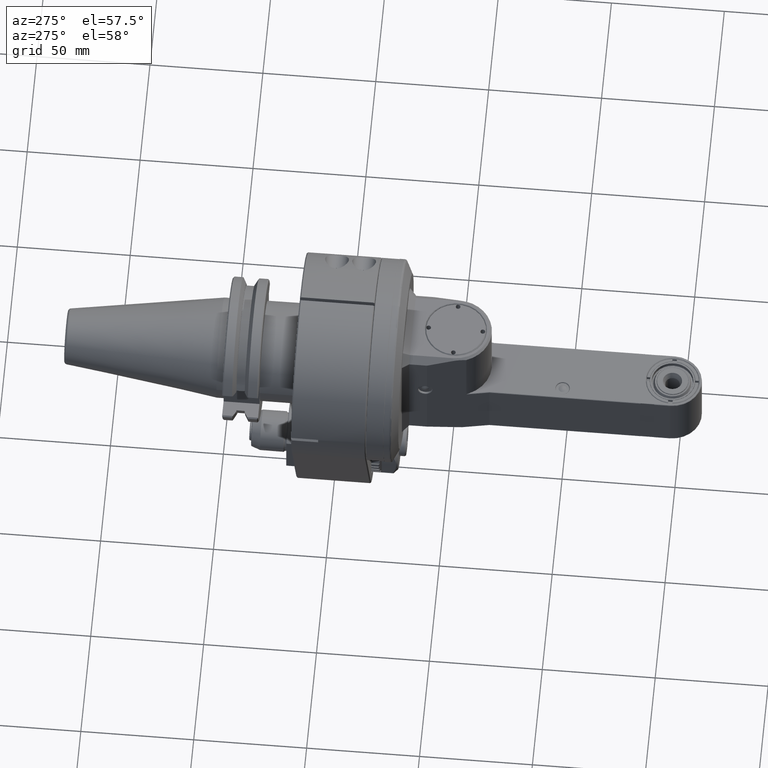
[diagram: clean part render]
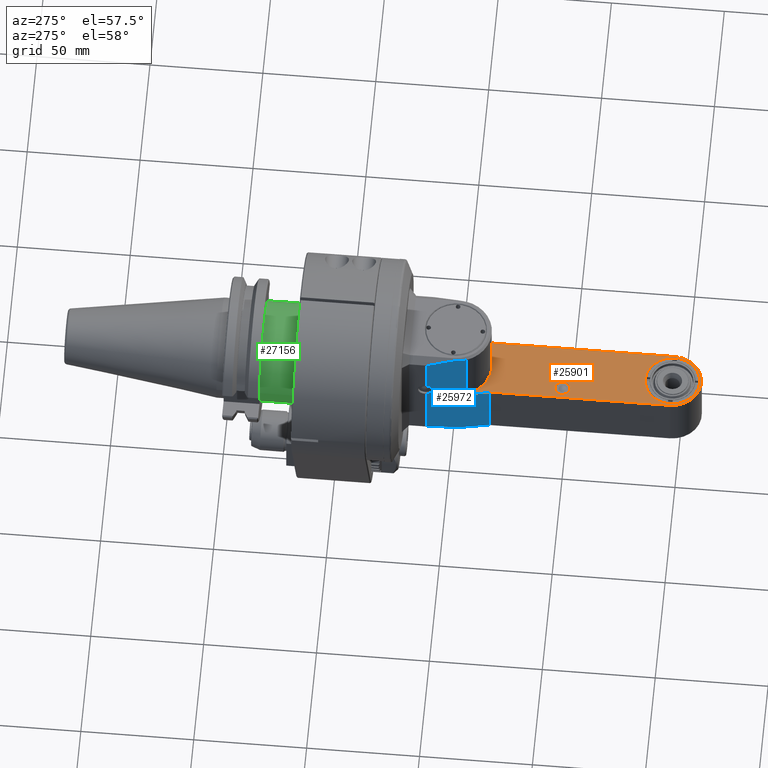
[diagram: same view with three faces highlighted in distinct colors, each labeled with its STEP entity id]
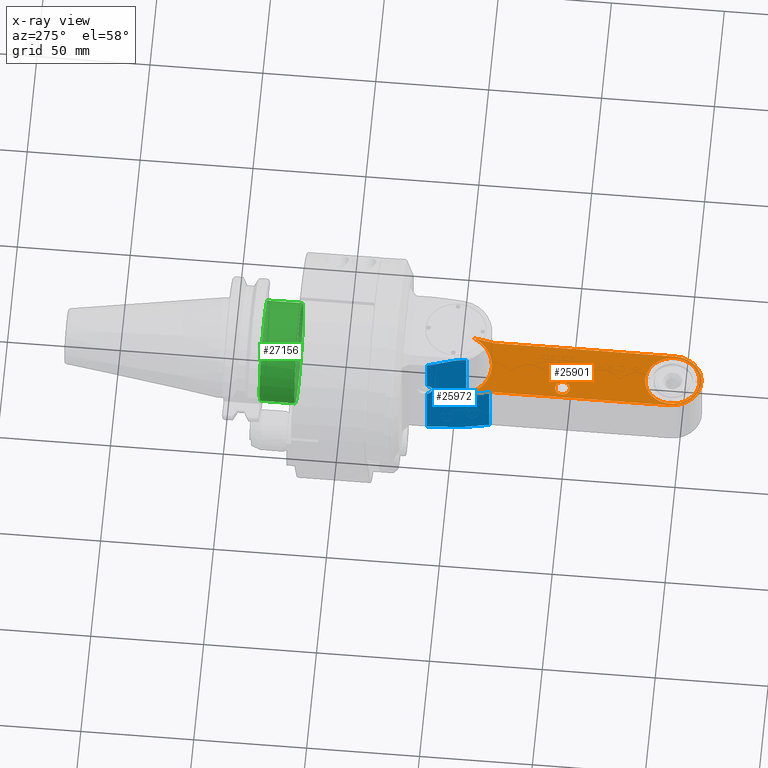
[diagram: x-ray of the same camera — body ghosted, the three highlighted faces saturated]
A machine part, auxiliary view with three faces highlighted in distinct colors.
The next image is the same camera in x-ray (body ghosted, the three faces saturated) — at least one of them is partly hidden behind the body in this view.
Their STEP definitions:

[orange] entity #25901 — the highlighted planar face has unit normal (0, -0, 1).
#596=FACE_BOUND('',#9300,.T.);
#597=FACE_BOUND('',#9301,.T.);
#815=PLANE('',#27831);
#1838=LINE('',#39497,#4217);
#1839=LINE('',#39501,#4218);
#1840=LINE('',#39503,#4219);
#1841=LINE('',#39506,#4220);
#4217=VECTOR('',#31312,0.36873418861607);
#4218=VECTOR('',#31315,0.36873418861607);
#4219=VECTOR('',#31316,3.15032548092756);
#4220=VECTOR('',#31319,3.15032548167756);
#6716=CIRCLE('',#27809,0.47244094488189);
#6727=CIRCLE('',#27832,0.62992125984252);
#6728=CIRCLE('',#27833,0.503937007874016);
#6729=CIRCLE('',#27834,0.127952755905512);
#7734=FACE_OUTER_BOUND('',#9299,.T.);
#9299=EDGE_LOOP('',(#18647,#18648,#18649,#18650,#18651,#18652));
#9300=EDGE_LOOP('',(#18653));
#9301=EDGE_LOOP('',(#18654));
#11393=VERTEX_POINT('',#39461);
#11397=VERTEX_POINT('',#39495);
#11398=VERTEX_POINT('',#39496);
#11399=VERTEX_POINT('',#39498);
#11400=VERTEX_POINT('',#39500);
#11401=VERTEX_POINT('',#39502);
#11402=VERTEX_POINT('',#39504);
#11403=VERTEX_POINT('',#39507);
#14150=EDGE_CURVE('',#11393,#11393,#6716,.T.);
#14165=EDGE_CURVE('',#11397,#11398,#1838,.T.);
#14166=EDGE_CURVE('',#11399,#11397,#6727,.T.);
#14167=EDGE_CURVE('',#11400,#11399,#1839,.T.);
#14168=EDGE_CURVE('',#11400,#11401,#1840,.T.);
#14169=EDGE_CURVE('',#11401,#11402,#6728,.T.);
#14170=EDGE_CURVE('',#11402,#11398,#1841,.T.);
#14171=EDGE_CURVE('',#11403,#11403,#6729,.T.);
#18647=ORIENTED_EDGE('',*,*,#14165,.F.);
#18648=ORIENTED_EDGE('',*,*,#14166,.F.);
#18649=ORIENTED_EDGE('',*,*,#14167,.F.);
#18650=ORIENTED_EDGE('',*,*,#14168,.T.);
#18651=ORIENTED_EDGE('',*,*,#14169,.T.);
#18652=ORIENTED_EDGE('',*,*,#14170,.T.);
#18653=ORIENTED_EDGE('',*,*,#14150,.T.);
#18654=ORIENTED_EDGE('',*,*,#14171,.T.);
#25901=ADVANCED_FACE('',(#7734,#596,#597),#815,.T.);
#27809=AXIS2_PLACEMENT_3D('',#39463,#31263,#31264);
#27831=AXIS2_PLACEMENT_3D('',#39494,#31310,#31311);
#27832=AXIS2_PLACEMENT_3D('',#39499,#31313,#31314);
#27833=AXIS2_PLACEMENT_3D('',#39505,#31317,#31318);
#27834=AXIS2_PLACEMENT_3D('',#39508,#31320,#31321);
#31263=DIRECTION('center_axis',(0.,0.,-1.));
#31264=DIRECTION('ref_axis',(-1.010526389656E-14,1.,0.));
#31310=DIRECTION('center_axis',(0.,0.,1.));
#31311=DIRECTION('ref_axis',(0.,1.,0.));
#31312=DIRECTION('',(0.181162429476896,0.98345318858908,0.));
#31313=DIRECTION('center_axis',(0.,0.,1.));
#31314=DIRECTION('ref_axis',(0.906046240537429,0.423178697488414,0.));
#31315=DIRECTION('',(0.181162429476896,-0.98345318858908,0.));
#31316=DIRECTION('',(-3.568083773111E-11,1.,3.568078263731E-11));
#31317=DIRECTION('center_axis',(0.,0.,1.));
#31318=DIRECTION('ref_axis',(1.,0.,0.));
#31319=DIRECTION('',(-5.597572120253E-11,-1.,-5.597566882584E-11));
#31320=DIRECTION('center_axis',(0.,0.,-1.));
#31321=DIRECTION('ref_axis',(1.,0.,0.));
#39461=CARTESIAN_POINT('',(-4.79696448494094E-15,6.65354330708661,0.));
#39463=CARTESIAN_POINT('Origin',(0.,6.18110236220472,4.19611851826772E-16));
#39494=CARTESIAN_POINT('Origin',(0.,6.18110236220472,0.));
#39495=CARTESIAN_POINT('',(-0.570737789314961,2.66814406141024,0.));
#39496=CARTESIAN_POINT('',(-0.503937007874016,3.03077687494646,0.));
#39497=CARTESIAN_POINT('',(-0.570737789314961,2.66814406141024,0.));
#39498=CARTESIAN_POINT('',(0.570737789314961,2.66814406140984,0.));
#39499=CARTESIAN_POINT('Origin',(0.,2.40157480314961,0.));
#39500=CARTESIAN_POINT('',(0.503937007874016,3.03077687494646,0.));
#39501=CARTESIAN_POINT('',(0.503937007874016,3.03077687494646,0.));
#39502=CARTESIAN_POINT('',(0.503937007805259,6.18110235587402,6.86927670643323E-11));
#39503=CARTESIAN_POINT('',(0.503937007874016,3.03077687494646,0.));
#39504=CARTESIAN_POINT('',(-0.503937007781469,6.18110235662205,9.25226341348549E-11));
#39505=CARTESIAN_POINT('Origin',(0.,6.18110236220472,4.89547160464567E-16));
#39506=CARTESIAN_POINT('',(-0.503937007697638,6.18110235662205,1.76341530689449E-10));
#39507=CARTESIAN_POINT('',(0.31496062992126,4.41929133858268,-3.92293371890188E-15));
#39508=CARTESIAN_POINT('Origin',(0.31496062992126,4.29133858267716,0.));

[blue] entity #25972 — the highlighted planar face has unit normal (0.9835, 0.1812, 0).
#142=(
BOUNDED_CURVE()
B_SPLINE_CURVE(2,(#40506,#40507,#40508),.UNSPECIFIED.,.F.,.F.)
B_SPLINE_CURVE_WITH_KNOTS((3,3),(7.85662819534098,10.0204386234075),
 .UNSPECIFIED.)
CURVE()
GEOMETRIC_REPRESENTATION_ITEM()
RATIONAL_B_SPLINE_CURVE((2.76121976732161,2.8150378216017,2.76490843392963))
REPRESENTATION_ITEM('')
);
#842=PLANE('',#27958);
#1850=LINE('',#39565,#4229);
#1851=LINE('',#39569,#4230);
#2129=LINE('',#40520,#4508);
#2130=LINE('',#40524,#4509);
#2131=LINE('',#40526,#4510);
#2132=LINE('',#40527,#4511);
#2133=LINE('',#40528,#4512);
#2134=LINE('',#40530,#4513);
#4229=VECTOR('',#31338,0.393700787401575);
#4230=VECTOR('',#31343,0.402103029607095);
#4508=VECTOR('',#31855,0.45106329957441);
#4509=VECTOR('',#31858,0.393700787401575);
#4510=VECTOR('',#31859,0.618398548537796);
#4511=VECTOR('',#31860,0.478102294600797);
#4512=VECTOR('',#31861,1.04724409448819);
#4513=VECTOR('',#31862,0.393700787401575);
#7805=FACE_OUTER_BOUND('',#9394,.T.);
#9394=EDGE_LOOP('',(#19153,#19154,#19155,#19156,#19157,#19158,#19159,#19160,
#19161,#19162,#19163));
#10782=B_SPLINE_CURVE_WITH_KNOTS('',3,(#40532,#40533,#40534,#40535,#40536,
#40537,#40538,#40539,#40540),.UNSPECIFIED.,.F.,.F.,(4,1,1,1,1,1,4),(4.55570582722062E-5,
0.1288830013355,0.3451262458863,0.5613694904371,0.7776127349879,0.9938559795386,
1.),.UNSPECIFIED.);
#10783=B_SPLINE_CURVE_WITH_KNOTS('',3,(#40541,#40542,#40543,#40544,#40545,
#40546,#40547,#40548,#40549),.UNSPECIFIED.,.F.,.F.,(4,1,1,1,1,1,4),(0.,
0.006398089645854,0.2226451895674,0.4388922894889,0.6551393894104,0.8713864893319,
0.999952717598519),.UNSPECIFIED.);
#11412=VERTEX_POINT('',#39532);
#11413=VERTEX_POINT('',#39564);
#11414=VERTEX_POINT('',#39568);
#11423=VERTEX_POINT('',#39594);
#11694=VERTEX_POINT('',#40496);
#11698=VERTEX_POINT('',#40518);
#11699=VERTEX_POINT('',#40522);
#11700=VERTEX_POINT('',#40523);
#11701=VERTEX_POINT('',#40525);
#11702=VERTEX_POINT('',#40529);
#11703=VERTEX_POINT('',#40531);
#14183=EDGE_CURVE('',#11413,#11412,#1850,.T.);
#14185=EDGE_CURVE('',#11414,#11413,#1851,.T.);
#14518=EDGE_CURVE('',#11412,#11694,#142,.T.);
#14524=EDGE_CURVE('',#11694,#11698,#2129,.T.);
#14525=EDGE_CURVE('',#11699,#11700,#2130,.T.);
#14526=EDGE_CURVE('',#11699,#11701,#2131,.T.);
#14527=EDGE_CURVE('',#11423,#11701,#2132,.T.);
#14528=EDGE_CURVE('',#11414,#11423,#2133,.T.);
#14529=EDGE_CURVE('',#11702,#11698,#2134,.T.);
#14530=EDGE_CURVE('',#11702,#11703,#10782,.T.);
#14531=EDGE_CURVE('',#11703,#11700,#10783,.T.);
#19153=ORIENTED_EDGE('',*,*,#14525,.F.);
#19154=ORIENTED_EDGE('',*,*,#14526,.T.);
#19155=ORIENTED_EDGE('',*,*,#14527,.F.);
#19156=ORIENTED_EDGE('',*,*,#14528,.F.);
#19157=ORIENTED_EDGE('',*,*,#14185,.T.);
#19158=ORIENTED_EDGE('',*,*,#14183,.T.);
#19159=ORIENTED_EDGE('',*,*,#14518,.T.);
#19160=ORIENTED_EDGE('',*,*,#14524,.T.);
#19161=ORIENTED_EDGE('',*,*,#14529,.F.);
#19162=ORIENTED_EDGE('',*,*,#14530,.T.);
#19163=ORIENTED_EDGE('',*,*,#14531,.T.);
#25972=ADVANCED_FACE('',(#7805),#842,.F.);
#27958=AXIS2_PLACEMENT_3D('',#40521,#31856,#31857);
#31338=DIRECTION('',(0.,0.,1.));
#31343=DIRECTION('',(0.181162429476896,-0.98345318858908,0.));
#31855=DIRECTION('',(0.1782608007944,-0.967701490026898,-0.1782608007944));
#31856=DIRECTION('center_axis',(-0.98345318858908,-0.181162429476896,0.));
#31857=DIRECTION('ref_axis',(0.181162429476896,-0.98345318858908,0.));
#31858=DIRECTION('',(0.,0.,1.));
#31859=DIRECTION('',(-0.1782608007944,0.967701490026898,-0.1782608007944));
#31860=DIRECTION('',(0.181162429476896,-0.98345318858908,0.));
#31861=DIRECTION('',(0.,0.,-1.));
#31862=DIRECTION('',(0.,0.,1.));
#39532=CARTESIAN_POINT('',(0.584656985365673,2.63604655638379,1.10236486492815));
#39564=CARTESIAN_POINT('',(0.584656985365748,2.63604655638386,-0.0078740157480315));
#39565=CARTESIAN_POINT('',(0.584656985365672,2.63604655638379,1.14173228346457));
#39568=CARTESIAN_POINT('',(0.511811023622047,3.03149606299213,-0.0078740157480315));
#39569=CARTESIAN_POINT('',(0.511811023622047,3.03149606299213,-0.0078740157480315));
#39594=CARTESIAN_POINT('',(0.511811023622047,3.03149606299213,-1.05511811023622));
#40496=CARTESIAN_POINT('',(0.62825451233189,2.39937426713976,1.10402895223504));
#40506=CARTESIAN_POINT('Ctrl Pts',(0.584656985365651,2.6360465563839,1.10236486492813));
#40507=CARTESIAN_POINT('Ctrl Pts',(0.606484581018497,2.51755389426843,1.12621172564898));
#40508=CARTESIAN_POINT('Ctrl Pts',(0.628254512331682,2.39937426713968,1.10402895223528));
#40518=CARTESIAN_POINT('',(0.708661417322835,1.96287964004488,1.02362204724409));
#40520=CARTESIAN_POINT('',(0.62825451233189,2.39937426713976,1.10402895223504));
#40521=CARTESIAN_POINT('Origin',(0.511811023622047,3.03149606299213,-2.1259842519685));
#40522=CARTESIAN_POINT('',(0.708661417322835,1.96287964004488,-0.94488188976378));
#40523=CARTESIAN_POINT('',(0.708660753897487,1.96283930459423,0.112597492128507));
#40524=CARTESIAN_POINT('',(0.708661417322835,1.96287964004476,-2.1259842519685));
#40525=CARTESIAN_POINT('',(0.598425196850394,2.56130483689528,-1.05511811023622));
#40526=CARTESIAN_POINT('',(0.708661417322835,1.96287964004488,-0.94488188976378));
#40527=CARTESIAN_POINT('',(0.511811023622047,3.03149606299213,-1.05511811023622));
#40528=CARTESIAN_POINT('',(0.511811023622047,3.03149606299213,-0.0078740157480315));
#40529=CARTESIAN_POINT('',(0.708660780236208,1.96283900633772,0.359843529719824));
#40530=CARTESIAN_POINT('',(0.708661417322835,1.96287964004476,-2.1259842519685));
#40531=CARTESIAN_POINT('',(0.691044717653652,2.05851318492131,0.236228755243747));
#40532=CARTESIAN_POINT('Ctrl Pts',(0.708660143149582,1.96288655698517,0.360019943141502));
#40533=CARTESIAN_POINT('Ctrl Pts',(0.70735698699843,1.96996083323479,0.358171787424213));
#40534=CARTESIAN_POINT('Ctrl Pts',(0.703947535850742,1.98846928232291,0.351607445615302));
#40535=CARTESIAN_POINT('Ctrl Pts',(0.698983379603543,2.01541755909331,0.334311326836575));
#40536=CARTESIAN_POINT('Ctrl Pts',(0.694542952774409,2.03952273330866,0.306535153587402));
#40537=CARTESIAN_POINT('Ctrl Pts',(0.691727429420472,2.05480700294331,0.273312574340118));
#40538=CARTESIAN_POINT('Ctrl Pts',(0.691054212216142,2.05846161062402,0.248939173807008));
#40539=CARTESIAN_POINT('Ctrl Pts',(0.691044720183858,2.05851313879882,0.236570470847126));
#40540=CARTESIAN_POINT('Ctrl Pts',(0.691044711042913,2.05851318842205,0.236228755248976));
#40541=CARTESIAN_POINT('Ctrl Pts',(0.691044710356299,2.05851319214843,0.23622875523937));
#40542=CARTESIAN_POINT('Ctrl Pts',(0.691044711328346,2.05851318687165,0.235872873955236));
#40543=CARTESIAN_POINT('Ctrl Pts',(0.691054297840157,2.05846114580787,0.223488598265551));
#40544=CARTESIAN_POINT('Ctrl Pts',(0.691728971551181,2.05479863137677,0.199098805692874));
#40545=CARTESIAN_POINT('Ctrl Pts',(0.694546440218898,2.03950380146575,0.165875465037874));
#40546=CARTESIAN_POINT('Ctrl Pts',(0.698989118733465,2.01538640381693,0.138102045059134));
#40547=CARTESIAN_POINT('Ctrl Pts',(0.703952440703721,1.98844265597654,0.120821788668183));
#40548=CARTESIAN_POINT('Ctrl Pts',(0.707359600902178,1.96994664347086,0.114265451307543));
#40549=CARTESIAN_POINT('Ctrl Pts',(0.70866009047214,1.96288684294848,0.112421071001801));

[green] entity #27156 — the highlighted cylindrical surface (bore or boss wall) has radius 22.225 mm, axis along (0, 1, 0).
#3950=LINE('',#49931,#6329);
#6329=VECTOR('',#37492,0.875);
#7453=CIRCLE('',#29862,0.875);
#7454=CIRCLE('',#29863,0.875);
#7455=CIRCLE('',#29865,0.875);
#8989=FACE_OUTER_BOUND('',#10697,.T.);
#10697=EDGE_LOOP('',(#25121,#25122,#25123,#25124,#25125));
#13485=VERTEX_POINT('',#49923);
#13486=VERTEX_POINT('',#49924);
#13487=VERTEX_POINT('',#49929);
#17378=EDGE_CURVE('',#13485,#13486,#7453,.T.);
#17380=EDGE_CURVE('',#13486,#13485,#7454,.T.);
#17381=EDGE_CURVE('',#13487,#13487,#7455,.T.);
#17382=EDGE_CURVE('',#13487,#13486,#3950,.T.);
#25121=ORIENTED_EDGE('',*,*,#17381,.T.);
#25122=ORIENTED_EDGE('',*,*,#17382,.T.);
#25123=ORIENTED_EDGE('',*,*,#17380,.T.);
#25124=ORIENTED_EDGE('',*,*,#17378,.T.);
#25125=ORIENTED_EDGE('',*,*,#17382,.F.);
#25668=CYLINDRICAL_SURFACE('',#29864,0.875);
#27156=ADVANCED_FACE('',(#8989),#25668,.T.);
#29862=AXIS2_PLACEMENT_3D('',#49925,#37483,#37484);
#29863=AXIS2_PLACEMENT_3D('',#49927,#37486,#37487);
#29864=AXIS2_PLACEMENT_3D('',#49928,#37488,#37489);
#29865=AXIS2_PLACEMENT_3D('',#49930,#37490,#37491);
#37483=DIRECTION('center_axis',(0.,1.,0.));
#37484=DIRECTION('ref_axis',(1.,0.,0.));
#37486=DIRECTION('center_axis',(0.,1.,0.));
#37487=DIRECTION('ref_axis',(1.,0.,0.));
#37488=DIRECTION('center_axis',(0.,1.,0.));
#37489=DIRECTION('ref_axis',(1.,0.,0.));
#37490=DIRECTION('center_axis',(0.,-1.,0.));
#37491=DIRECTION('ref_axis',(-1.,0.,0.));
#37492=DIRECTION('',(0.,-1.,0.));
#49923=CARTESIAN_POINT('',(3.69184504526392E-15,1.31889846843526,0.875));
#49924=CARTESIAN_POINT('',(-0.875,1.31889846843526,1.07156594925393E-16));
#49925=CARTESIAN_POINT('Origin',(0.,1.31889846843526,0.));
#49927=CARTESIAN_POINT('Origin',(0.,1.31889846843526,0.));
#49928=CARTESIAN_POINT('Origin',(0.,1.23031496062992,0.));
#49929=CARTESIAN_POINT('',(-0.875,1.9251968503937,1.07156594925393E-16));
#49930=CARTESIAN_POINT('Origin',(0.,1.9251968503937,0.));
#49931=CARTESIAN_POINT('',(-0.875,1.23031496062992,1.07156594925393E-16));